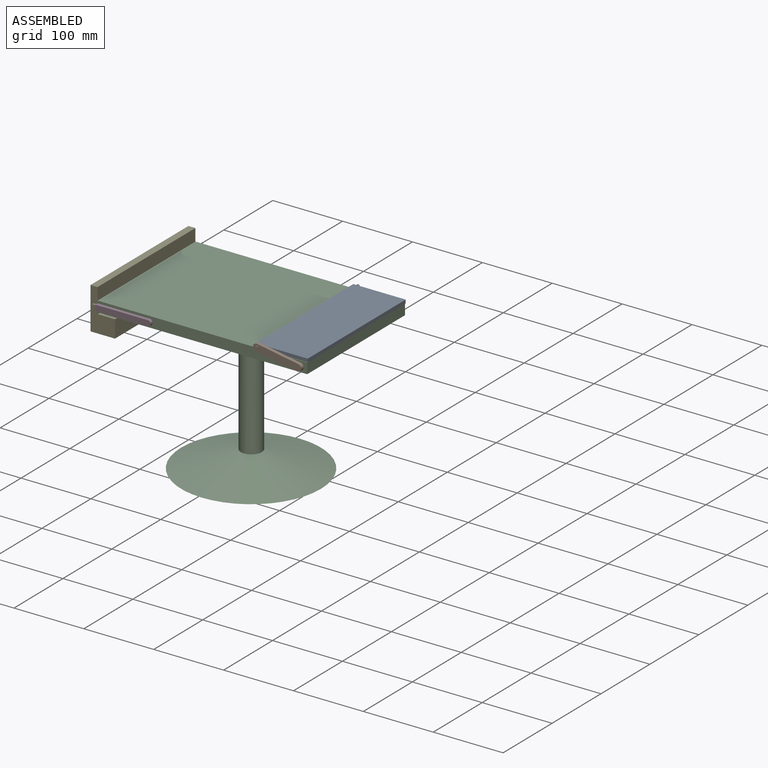
[diagram: assembled view]
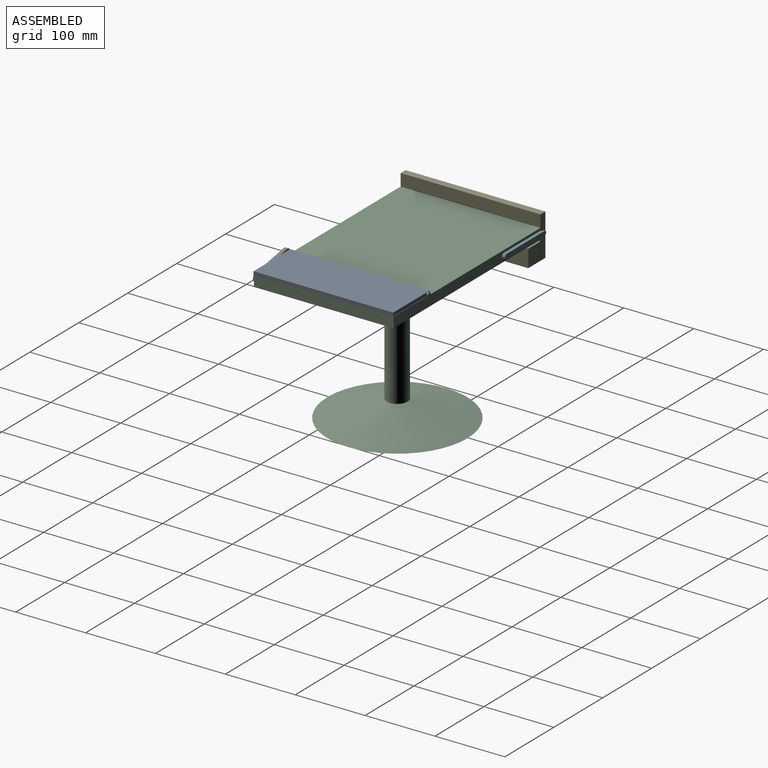
[diagram: assembled view, second angle]
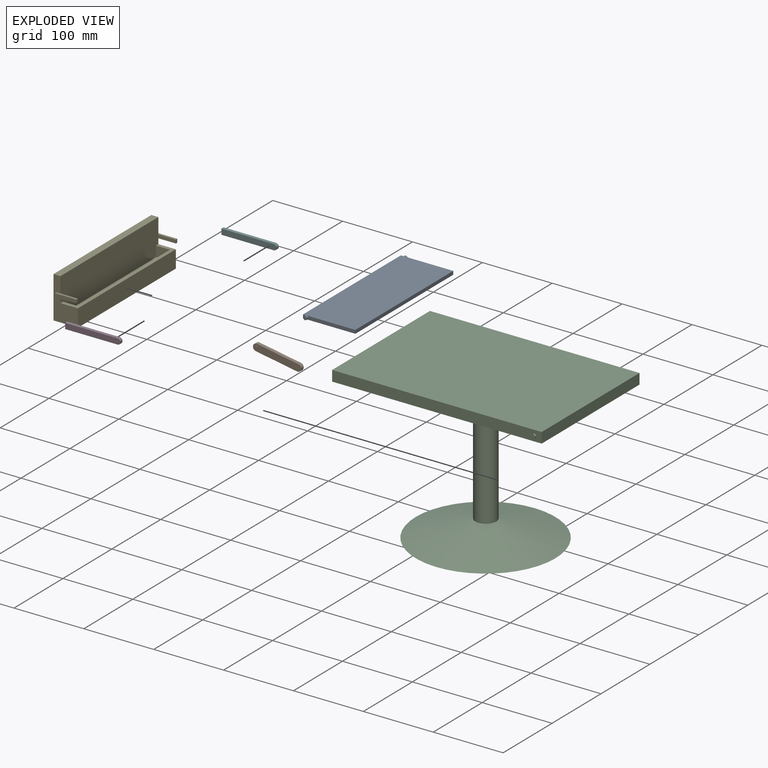
[diagram: exploded view]
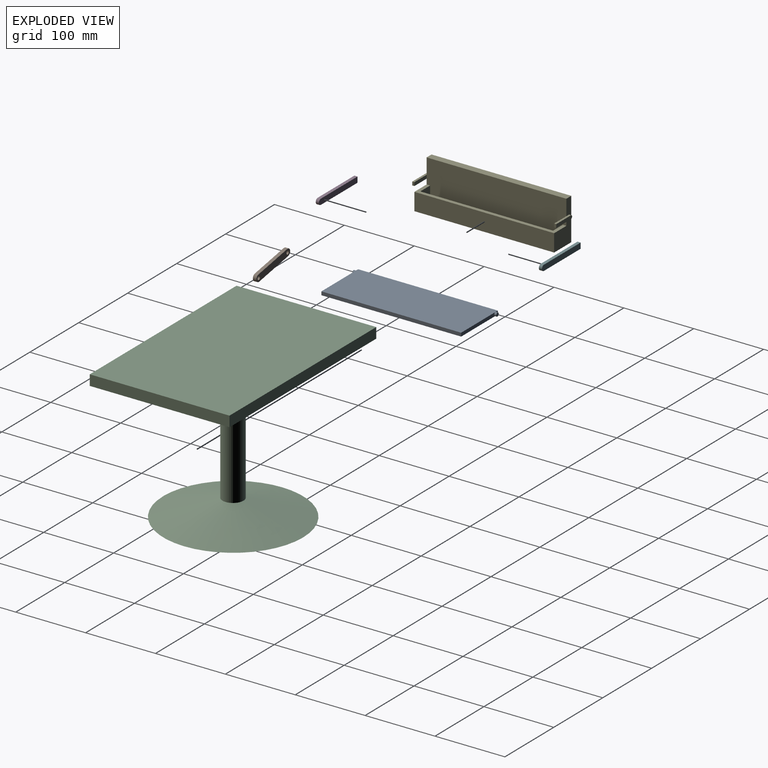
[diagram: exploded view, second angle]
ASSEMBLY  parts=6 mates=5
PART A: 12 faces, bbox 75x206x5 mm
  f0: plane 70x5mm, normal (0,1,0), area 340.2mm2, adj f2,f6,f7,f10
  f1: plane 70x5mm, normal (0,-1,0), area 340.2mm2, adj f2,f6,f7,f8
  f2: plane 200x5mm, normal (1,0,0), area 1000mm2, adj f0,f1,f6,f7
  f3: plane 5x5mm, normal (0,1,0), area 15.2mm2, adj f4,f6,f7,f10
  f4: plane 200x5mm, normal (-1,0,0), area 1000mm2, adj f3,f5,f6,f7
  f5: plane 5x5mm, normal (0,-1,0), area 15.2mm2, adj f4,f6,f7,f8
  f6: plane 200x75mm, normal (0,0,1), area 15000mm2, adj f0,f1,f2,f3,f4,f5
  f7: plane 200x75mm, normal (0,0,-1), area 15000mm2, adj f0,f1,f2,f3,f4,f5
  f8: cylinder r=2.5mm len=5mm, axis (0,1,0), area 47.1mm2, adj f1,f5,f9
  f9: plane 5x5mm, normal (0,-1,0), area 19.6mm2, adj f8
  f10: cylinder r=2.5mm len=5mm, axis (0,-1,0), area 47.1mm2, adj f0,f3,f11
  f11: plane 5x5mm, normal (0,1,0), area 19.6mm2, adj f10
PART B: 12 faces, bbox 70x6x10 mm
  f0: plane 60x5mm, normal (0,0,1), area 300mm2, adj f1,f3,f4,f5
  f1: cylinder r=5mm len=10mm, axis (0,1,0), area 78.5mm2, adj f0,f2,f4,f5
  f2: plane 60x5mm, normal (0,0,-1), area 300mm2, adj f1,f3,f4,f5
  f3: cylinder r=5mm len=10mm, axis (0,1,0), area 78.5mm2, adj f0,f2,f4,f5
  f4: plane 70x10mm, normal (0,-1,0), area 639.3mm2, adj f0,f1,f2,f3,f6,f8
  f5: plane 70x10mm, normal (0,1,0), area 658.9mm2, adj f0,f1,f2,f3,f10
  f6: cylinder r=2.5mm len=5mm, axis (0,-1,0), area 47.1mm2, adj f4,f7
  f7: plane 5x5mm, normal (0,-1,0), area 19.6mm2, adj f6
  f8: cylinder r=2.5mm len=5mm, axis (0,-1,0), area 47.1mm2, adj f4,f9
  f9: plane 5x5mm, normal (0,-1,0), area 19.6mm2, adj f8
  f10: cylinder r=2.5mm len=5mm, axis (0,-1,0), area 15.7mm2, adj f5,f11
  f11: plane 5x5mm, normal (0,1,0), area 19.6mm2, adj f10
PART C: 11 faces, bbox 300x203x215 mm
  f0: plane 300x15mm, normal (0,1,0), area 4500mm2, adj f1,f3,f4,f5
  f1: plane 200x15mm, normal (-1,0,0), area 3000mm2, adj f0,f2,f4,f5
  f2: plane 300x15mm, normal (0,-1,0), area 4480.4mm2, adj f1,f3,f4,f5,f6
  f3: plane 200x15mm, normal (1,0,0), area 3000mm2, adj f0,f2,f4,f5
  f4: plane 300x200mm, normal (0,0,1), area 60000mm2, adj f0,f1,f2,f3
  f5: plane 300x200mm, normal (0,0,-1), area 59293.1mm2, adj f0,f1,f2,f3,f8
  f6: cylinder r=2.5mm len=5mm, axis (0,1,0), area 47.1mm2, adj f2,f7
  f7: plane 5x5mm, normal (0,-1,0), area 19.6mm2, adj f6
  f8: cylinder r=15mm len=175mm, axis (0,0,1), area 16493.4mm2, adj f5,f10
  f9: plane 200x200mm, normal (0,0,-1), area 31416mm2, adj f10
  f10: bspline ~199.9x199.79mm, area 32009.6mm2, adj f8,f9
PART D: 11 faces, bbox 79x4.5x8 mm
  f0: plane 8x4.5mm, normal (-1,0,0), area 21.5mm2, adj f1,f2,f4,f6,f7,f8,f9,f10
  f1: plane 75x4.5mm, normal (0,0,-1), area 337.5mm2, adj f0,f3,f7,f10
  f2: plane 75x4.5mm, normal (0,0,1), area 337.5mm2, adj f0,f3,f7,f10
  f3: cylinder r=4mm len=8mm, axis (0,1,0), area 56.5mm2, adj f1,f2,f7,f10
  f4: plane 75x2.9mm, normal (0,0,1), area 217.5mm2, adj f0,f5,f8,f9
  f5: cylinder r=2.5mm len=5mm, axis (0,1,0), area 22.8mm2, adj f4,f6,f8,f9
  f6: plane 75x2.9mm, normal (0,0,-1), area 217.5mm2, adj f0,f5,f8,f9
  f7: plane 79x8mm, normal (0,1,0), area 625.1mm2, adj f0,f1,f2,f3
  f8: plane 77.5x5mm, normal (0,-1,0), area 384.8mm2, adj f0,f4,f5,f6
  f9: plane 77.5x5mm, normal (0,1,0), area 384.8mm2, adj f0,f4,f5,f6
  f10: plane 79x8mm, normal (0,-1,0), area 625.1mm2, adj f0,f1,f2,f3
PART E: 36 faces, bbox 35x206x60 mm
  f0: plane 200x50mm, normal (1,0,0), area 9850mm2, adj f1,f2,f3,f5,f8,f9,f26,f34
  f1: plane 190x20mm, normal (0,0,1), area 2739.7mm2, adj f0,f4,f9,f11,f13,f15,f17,f19
  f2: plane 60x35mm, normal (0,1,0), area 1190.2mm2, adj f0,f5,f6,f7,f8,f10,f29,f30
  f3: plane 60x35mm, normal (0,-1,0), area 1190.2mm2, adj f0,f5,f6,f7,f8,f10,f21,f22
  f4: plane 190x15mm, normal (-1,0,0), area 2850mm2, adj f1,f8,f9,f35
  f5: plane 200x10mm, normal (0,0,1), area 2000mm2, adj f0,f2,f3,f6
  f6: plane 200x60mm, normal (-1,0,0), area 12000mm2, adj f2,f3,f5,f7
  f7: plane 200x35mm, normal (0,0,-1), area 7000mm2, adj f2,f3,f6,f10
  f8: plane 200x25mm, normal (0,0,1), area 1200mm2, adj f0,f2,f3,f4,f9,f10,f35
  f9: plane 20x15mm, normal (0,-1,0), area 300mm2, adj f0,f1,f4,f8
  f10: plane 200x25mm, normal (1,0,0), area 5000mm2, adj f2,f3,f7,f8
  f11: cylinder r=7.5mm len=15mm, axis (0,0,1), area 235.6mm2, adj f1,f12
  f12: plane 15x15mm, normal (0,0,1), area 176.7mm2, adj f11
  f13: cylinder r=7.5mm len=15mm, axis (0,0,1), area 235.6mm2, adj f1,f14
  f14: plane 15x15mm, normal (0,0,1), area 176.7mm2, adj f13
  f15: cylinder r=7.5mm len=15mm, axis (0,0,1), area 235.6mm2, adj f1,f16
  f16: plane 15x15mm, normal (0,0,1), area 176.7mm2, adj f15
  f17: cylinder r=7.5mm len=15mm, axis (0,0,1), area 235.6mm2, adj f1,f18
  f18: plane 15x15mm, normal (0,0,1), area 176.7mm2, adj f17
  f19: cylinder r=7.5mm len=15mm, axis (0,0,1), area 235.6mm2, adj f1,f20
  f20: plane 15x15mm, normal (0,0,1), area 176.7mm2, adj f19
  f21: plane 30x3mm, normal (0,0,1), area 90mm2, adj f3,f22,f24,f25,f26
  f22: cylinder r=2.5mm len=5mm, axis (0,1,0), area 23.6mm2, adj f3,f21,f23,f25
  f23: plane 30x3mm, normal (0,0,-1), area 90mm2, adj f3,f22,f24,f25,f26
  f24: plane 5x3mm, normal (1,0,0), area 15mm2, adj f21,f23,f25,f26
  f25: plane 32.5x5mm, normal (0,-1,0), area 159.8mm2, adj f21,f22,f23,f24
  f26: plane 25x5mm, normal (0,1,0), area 125mm2, adj f0,f21,f23,f24
  f27: cylinder r=7.5mm len=15mm, axis (0,0,1), area 235.6mm2, adj f1,f28
  f28: plane 15x15mm, normal (0,0,1), area 176.7mm2, adj f27
  f29: plane 30x3mm, normal (0,0,1), area 90mm2, adj f2,f30,f32,f33,f34
  f30: cylinder r=2.5mm len=5mm, axis (0,-1,0), area 23.6mm2, adj f2,f29,f31,f33
  f31: plane 30x3mm, normal (0,0,-1), area 90mm2, adj f2,f30,f32,f33,f34
  f32: plane 5x3mm, normal (1,0,0), area 15mm2, adj f29,f31,f33,f34
  f33: plane 32.5x5mm, normal (0,1,0), area 159.8mm2, adj f29,f30,f31,f32
  f34: plane 25x5mm, normal (0,-1,0), area 125mm2, adj f0,f29,f31,f32
  f35: plane 20x15mm, normal (0,1,0), area 300mm2, adj f0,f1,f4,f8
PART F: same geometry as D
PLACE A rot(axis=(-1,0,0),0deg) t=(364.67,65.44,-55.5)mm
PLACE B rot(axis=(1,0,-0.09),180deg) t=(367.7,-139.56,-60.8)mm
PLACE C t=(138.43,-21.04,-70.92)mm fixed
PLACE D rot(axis=(1,0,0),180deg) t=(138.75,-139.06,-63.42)mm
PLACE E t=(83.75,65.39,-73.42)mm
PLACE F t=(138.75,69.94,-63.42)mm
MATE revolute B.f3 <-> C.f6  axis (0,1,0) through (353.75,-137.56,-63.42)mm
MATE revolute A.f8 <-> B.f1  axis (0,-1,0) through (294.67,-137.56,-53)mm
MATE fastened C.f2 <-> D.f10  axis (0,-1,0) through (63.75,-134.56,-63.42)mm
MATE fastened F.f10 <-> C.f0  axis (0,-1,0) through (63.75,65.44,-63.42)mm
MATE slider D.f0 <-> E.f24  axis (-1,0,0) through (63.75,-136.11,-63.42)mm
